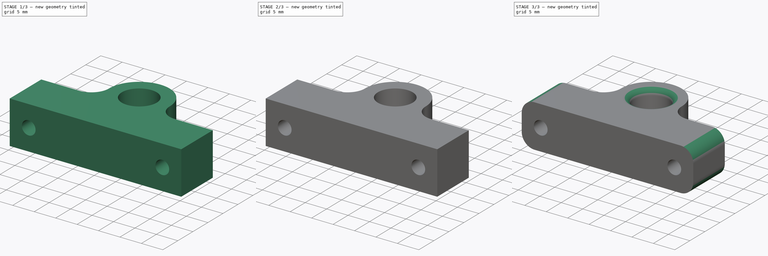
[diagram: build sequence overview — one tinted view per stage of 3, left to right]
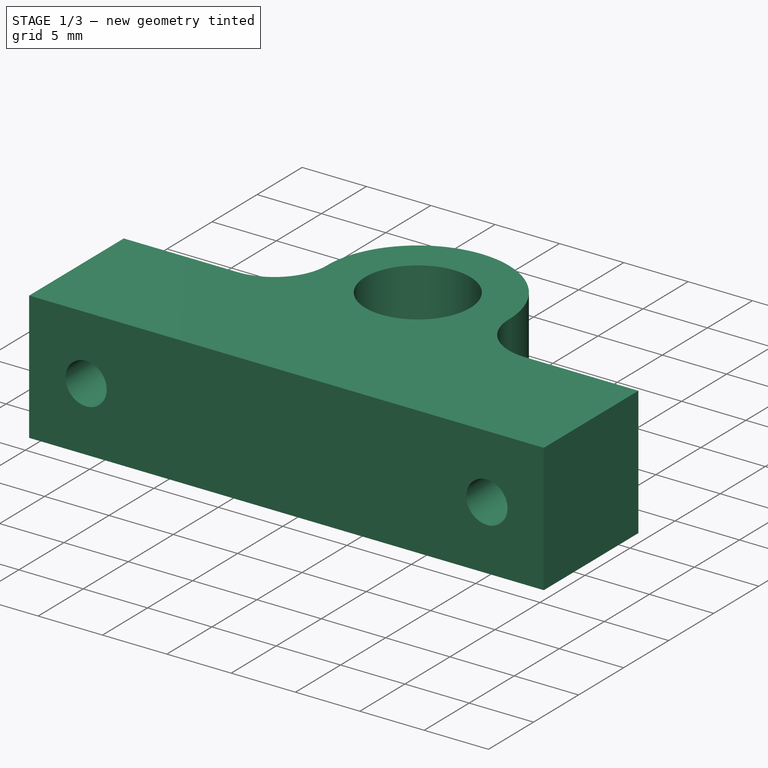
[diagram: stage 1 of 3 — iso view after this stage's code; geometry added in this stage tinted green]
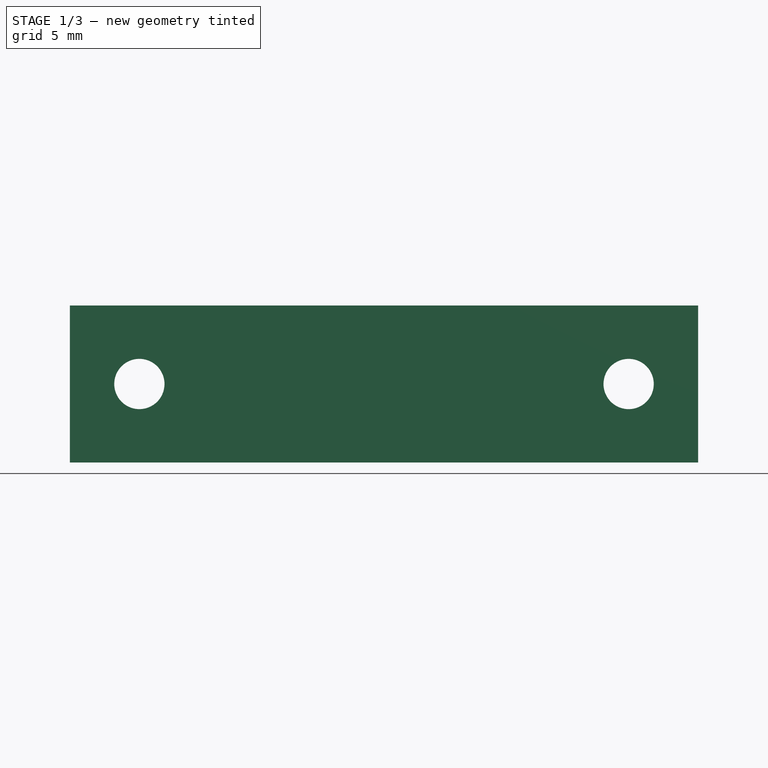
[diagram: stage 1 of 3 — front view after this stage's code; geometry added in this stage tinted green]
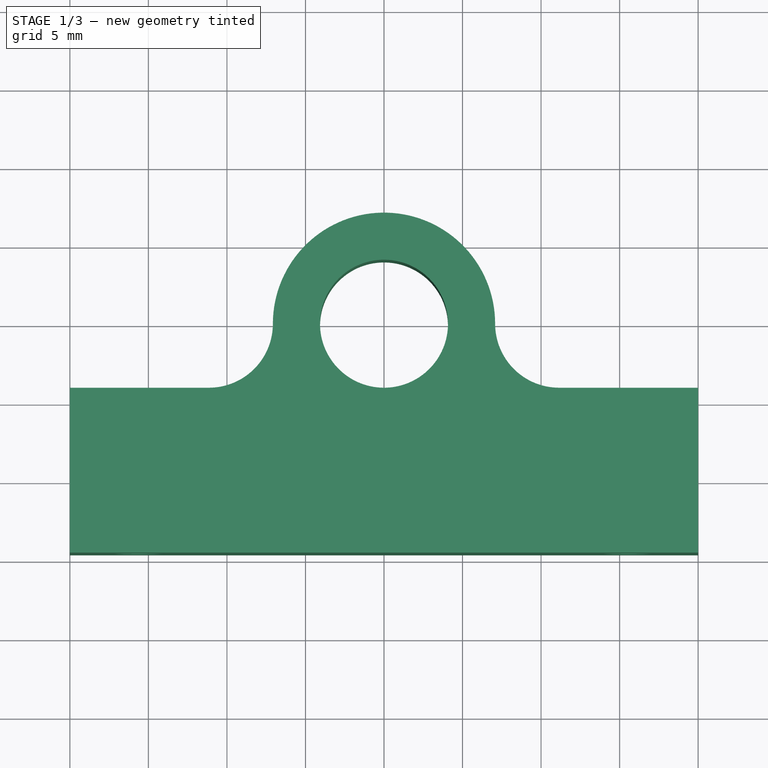
[diagram: stage 1 of 3 — top view after this stage's code; geometry added in this stage tinted green]
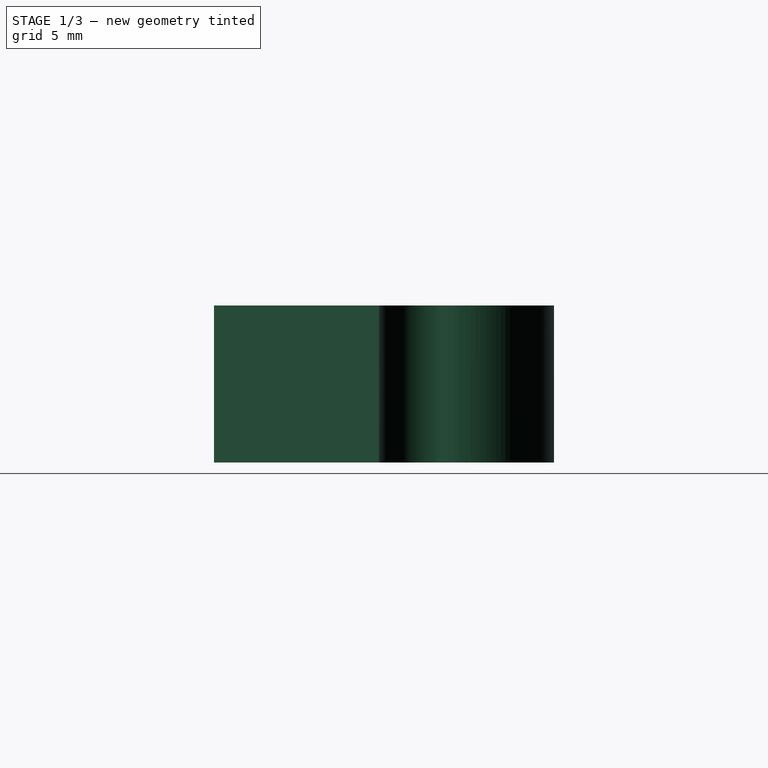
[diagram: stage 1 of 3 — right view after this stage's code; geometry added in this stage tinted green]
FCSTD DOCUMENT  (FreeCAD 0.20R29603 (Git))
Label: suporte-caixa-lateral-M8-P2
License: All rights reserved
LicenseURL: http://en.wikipedia.org/wiki/All_rights_reserved
objects: Sketcher::SketchObject×3, PartDesign::Pocket×2, PartDesign::Fillet×2, PartDesign::Pad×1, PartDesign::Body×1
note: 14 computed .brp shape members not serialized (recipe doc carries the construction recipe); baked Part::Feature solids carry a one-line shape summary decoded from their .brp

FEATURE [Sketcher::SketchObject] Sketch
  FullyConstrained = true
  MapMode = 5
  Support = -> [XY_Plane]
  sketch-geometry (15):
    g0: LineSegment StartX=-20 StartY=-4.075 StartZ=0 EndX=20 EndY=-4.075 EndZ=0
    g1: LineSegment StartX=20 StartY=-4.075 StartZ=0 EndX=20 EndY=-14.575 EndZ=0
    g2: LineSegment StartX=20 StartY=-14.575 StartZ=0 EndX=-20 EndY=-14.575 EndZ=0
    g3: LineSegment StartX=-20 StartY=-14.575 StartZ=0 EndX=-20 EndY=-4.075 EndZ=0
    g4: ArcOfCircle CenterX=0 CenterY=0 CenterZ=0 NormalX=0 NormalY=0 NormalZ=1 AngleXU=0 Radius=7.075 StartAngle=0 EndAngle=3.14159
    g5: LineSegment StartX=-7.075 StartY=0 StartZ=0 EndX=-7.075 EndY=-2.45553e-05 EndZ=0
    g6: LineSegment StartX=7.075 StartY=-2.45553e-05 StartZ=0 EndX=7.075 EndY=0 EndZ=0
    g7: Circle CenterX=0 CenterY=0 CenterZ=0 NormalX=0 NormalY=0 NormalZ=1 AngleXU=0 Radius=4.075
    g8: GeomPoint X=0 Y=-4.075 Z=0
    g9: GeomPoint X=0 Y=4.075 Z=0
    g10: GeomPoint X=0 Y=7.075 Z=0
    g11: LineSegment StartX=-20 StartY=-4.075 StartZ=0 EndX=-11.15 EndY=-4.075 EndZ=0
    g12: LineSegment StartX=20 StartY=-4.075 StartZ=0 EndX=11.15 EndY=-4.075 EndZ=0
    g13: ArcOfCircle CenterX=-11.15 CenterY=-2.45553e-05 CenterZ=0 NormalX=0 NormalY=0 NormalZ=1 AngleXU=0 Radius=4.07498 StartAngle=4.71239 EndAngle=6.28319
    g14: ArcOfCircle CenterX=11.15 CenterY=-2.45553e-05 CenterZ=0 NormalX=0 NormalY=0 NormalZ=1 AngleXU=0 Radius=4.07498 StartAngle=3.14159 EndAngle=4.71239
  constraints (36):
    c: Coincident(g0,g1)
    c: Coincident(g1,g2)
    c: Coincident(g2,g3)
    c: Coincident(g3,g0)
    c: Horizontal(g0)
    c: Horizontal(g2)
    c: Vertical(g1)
    c: Vertical(g3)
    c: Tangent(g4,g5) = -1.5708
    c: Tangent(g6,g4) = -1.5708
    c: Vertical(g5)
    c: Vertical(g6)
    c: Coincident(g7,g4)
    c: Diameter(g7) = 8.15
    c: PointOnObject(g8,g-2)
    c: PointOnObject(g8,g7)
    c: DistanceY(g1,g8) = 10.5
    c: Tangent(g0,g7)
    c: PointOnObject(g10,g4)
    c: PointOnObject(g10,g-2)
    c: PointOnObject(g9,g7)
    c: PointOnObject(g9,g-2)
    c: DistanceX(g2,g2) = 40
    c: DistanceY(g9,g10) = 3
    c: Coincident(g11,g3)
    c: Coincident(g12,g1)
    c: Equal(g11,g12)
    c: Tangent(g5,g13) = 1.5708
    c: Tangent(g11,g13) = -1.5708
    c: Tangent(g6,g14) = 1.5708
    c: Tangent(g12,g14) = 1.5708
    c: Equal(g13,g14)
    c: Horizontal(g11)
    c: Horizontal(g12)
    c: Coincident(g4,g-1)
    c: Tangent(g13,g4)
FEATURE [PartDesign::Pad] Pad
  Direction = (0,0,1)
  Length = 10
  Length2 = 10
  Profile = -> Sketch
  ReferenceAxis = -> Sketch [N_Axis]
  Type = 0
FEATURE [Sketcher::SketchObject] Sketch001
  ExternalGeometry = -> [Pad]
  FullyConstrained = true
  MapMode = 5
  Placement = pos=(0,-4.075,0) rot=(0,0.707107,0.707107;3.14159rad)
  Support = -> [Pad]
  sketch-geometry (6):
    g0: Circle CenterX=-15.575 CenterY=5 CenterZ=0 NormalX=0 NormalY=0 NormalZ=1 AngleXU=0 Radius=1.6
    g1: Circle CenterX=15.575 CenterY=5 CenterZ=0 NormalX=0 NormalY=0 NormalZ=1 AngleXU=0 Radius=1.6
    g2: LineSegment StartX=-20 StartY=10 StartZ=0 EndX=-11.15 EndY=0 EndZ=0
    g3: LineSegment StartX=-11.15 StartY=10 StartZ=0 EndX=-20 EndY=0 EndZ=0
    g4: LineSegment StartX=11.15 StartY=10 StartZ=0 EndX=20 EndY=0 EndZ=0
    g5: LineSegment StartX=20 StartY=10 StartZ=0 EndX=11.15 EndY=0 EndZ=0
  constraints (14):
    c: Coincident(g2,g-9)
    c: Coincident(g2,g-10)
    c: Coincident(g3,g-8)
    c: Coincident(g3,g-10)
    c: Coincident(g4,g-5)
    c: Coincident(g4,g-6)
    c: Coincident(g5,g-4)
    c: Coincident(g5,g-6)
    c: PointOnObject(g1,g5)
    c: PointOnObject(g1,g4)
    c: PointOnObject(g0,g2)
    c: PointOnObject(g0,g3)
    c: Equal(g0,g1)
    c: Diameter(g1) = 3.2
FEATURE [PartDesign::Pocket] Pocket
  BaseFeature = -> Pad
  Direction = (0,-1,2e-16)
  Length = 5
  Length2 = 5
  Profile = -> Sketch001
  ReferenceAxis = -> Sketch001 [N_Axis]
  Type = 1
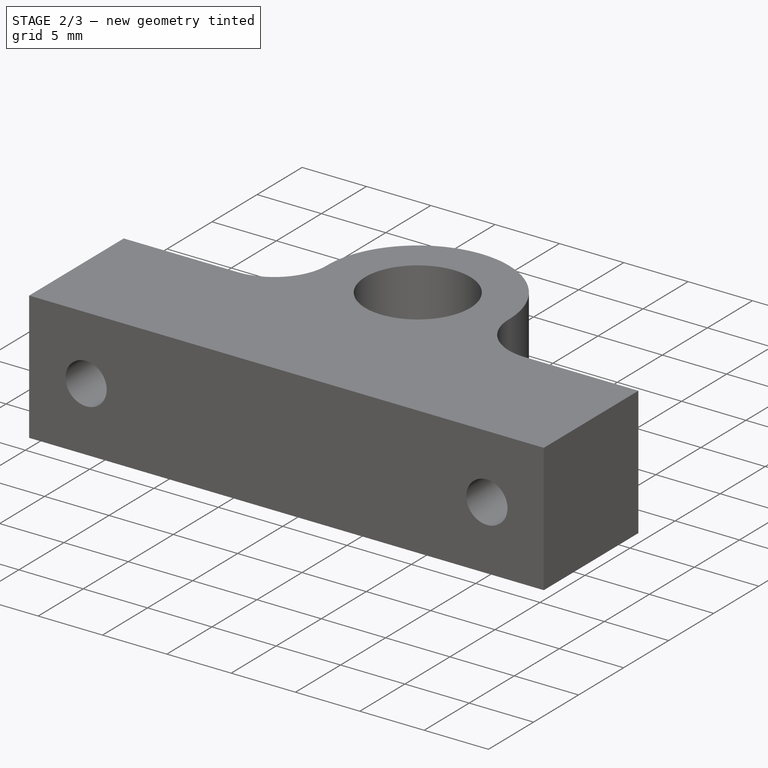
[diagram: stage 2 of 3 — iso view after this stage's code; geometry added in this stage tinted green]
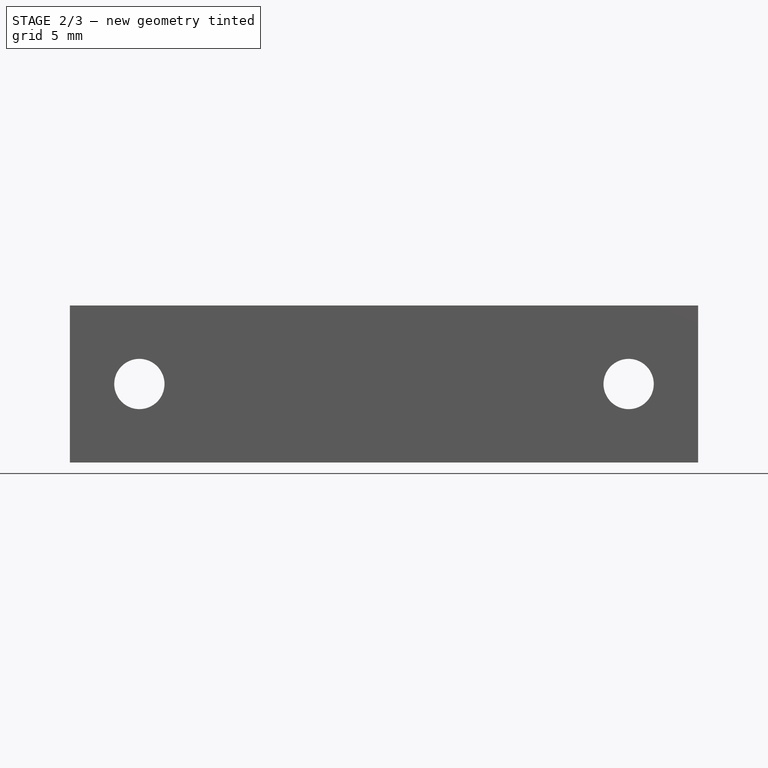
[diagram: stage 2 of 3 — front view after this stage's code; geometry added in this stage tinted green]
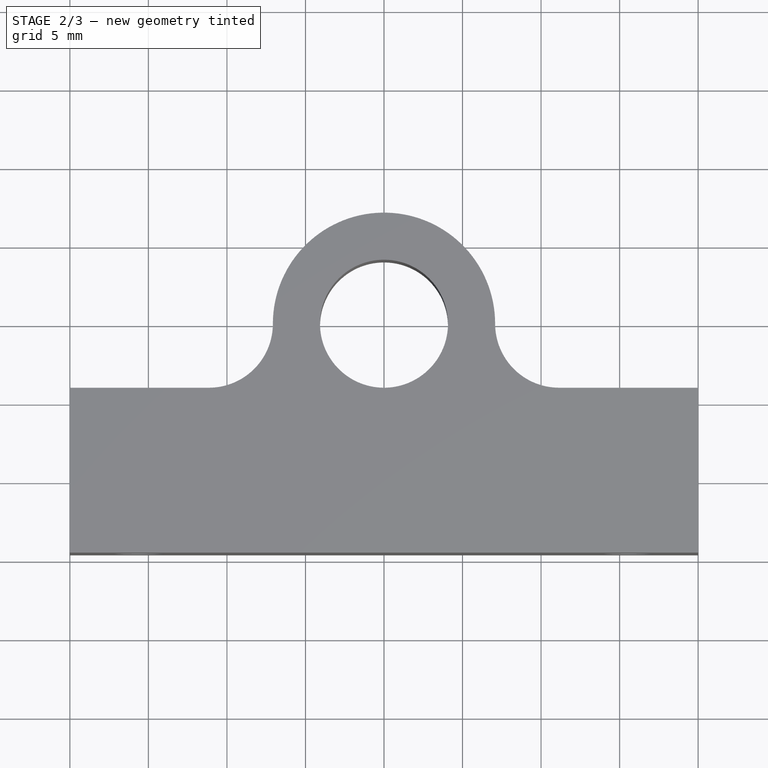
[diagram: stage 2 of 3 — top view after this stage's code; geometry added in this stage tinted green]
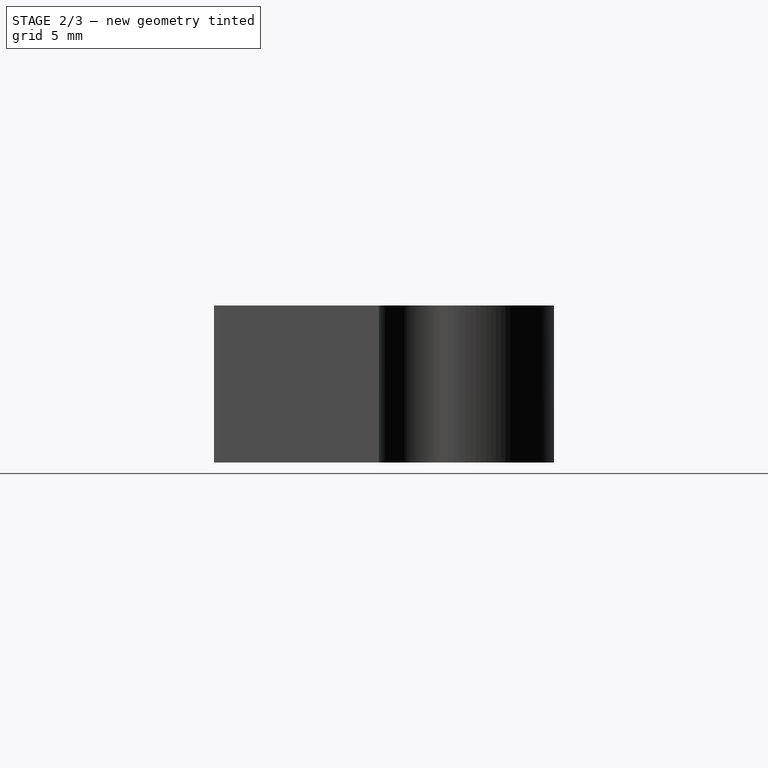
[diagram: stage 2 of 3 — right view after this stage's code; geometry added in this stage tinted green]
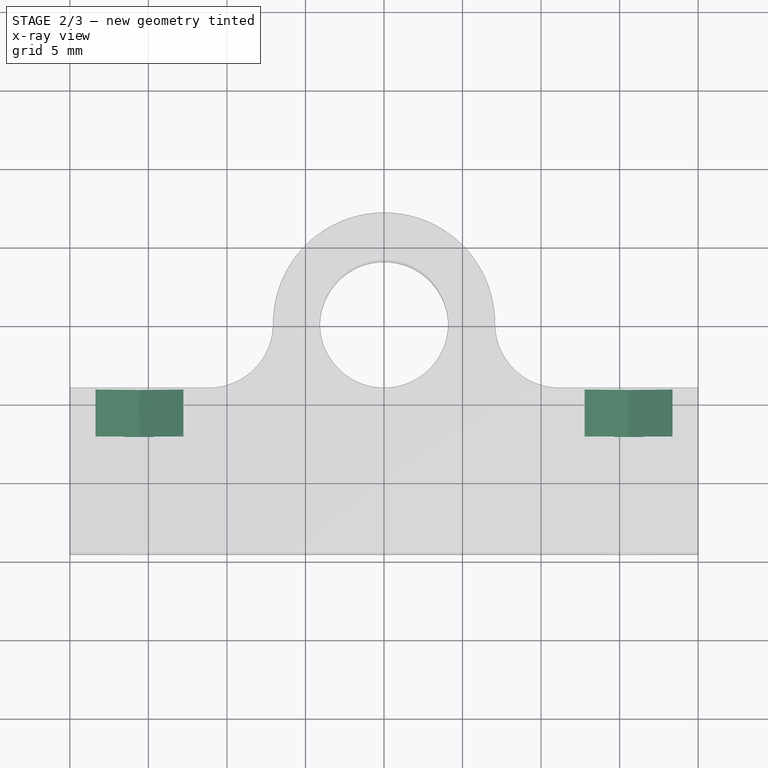
[diagram: stage 2 of 3 — x-ray composite at the top view; earlier geometry ghosted, this stage's added geometry solid]
FEATURE [Sketcher::SketchObject] Sketch002
  ExternalGeometry = -> [Pocket]
  FullyConstrained = true
  MapMode = 5
  Placement = pos=(0,-4.075,0) rot=(0,0.707107,0.707107;3.14159rad)
  Support = -> [Pocket]
  sketch-geometry (14):
    g0: LineSegment StartX=-15.575 StartY=8.23316 StartZ=0 EndX=-18.375 EndY=6.61658 EndZ=0
    g1: LineSegment StartX=-18.375 StartY=6.61658 StartZ=0 EndX=-18.375 EndY=3.38342 EndZ=0
    g2: LineSegment StartX=-18.375 StartY=3.38342 StartZ=0 EndX=-15.575 EndY=1.76684 EndZ=0
    g3: LineSegment StartX=-15.575 StartY=1.76684 StartZ=0 EndX=-12.775 EndY=3.38342 EndZ=0
    g4: LineSegment StartX=-12.775 StartY=3.38342 StartZ=0 EndX=-12.775 EndY=6.61658 EndZ=0
    g5: LineSegment StartX=-12.775 StartY=6.61658 StartZ=0 EndX=-15.575 EndY=8.23316 EndZ=0
    g6: Circle CenterX=-15.575 CenterY=5 CenterZ=0 NormalX=0 NormalY=0 NormalZ=1 AngleXU=0 Radius=3.23316
    g7: LineSegment StartX=15.575 StartY=8.23316 StartZ=0 EndX=12.775 EndY=6.61658 EndZ=0
    g8: LineSegment StartX=12.775 StartY=6.61658 StartZ=0 EndX=12.775 EndY=3.38342 EndZ=0
    g9: LineSegment StartX=12.775 StartY=3.38342 StartZ=0 EndX=15.575 EndY=1.76684 EndZ=0
    g10: LineSegment StartX=15.575 StartY=1.76684 StartZ=0 EndX=18.375 EndY=3.38342 EndZ=0
    g11: LineSegment StartX=18.375 StartY=3.38342 StartZ=0 EndX=18.375 EndY=6.61658 EndZ=0
    g12: LineSegment StartX=18.375 StartY=6.61658 StartZ=0 EndX=15.575 EndY=8.23316 EndZ=0
    g13: Circle CenterX=15.575 CenterY=5 CenterZ=0 NormalX=0 NormalY=0 NormalZ=1 AngleXU=0 Radius=3.23316
  constraints (32):
    c: Coincident(g0,g1)
    c: Coincident(g1,g2)
    c: Coincident(g2,g3)
    c: Coincident(g3,g4)
    c: Coincident(g4,g5)
    c: Coincident(g5,g0)
    c: Equal(g0, g1-g5) x5
    c: PointOnObject(g0,g6)
    c: PointOnObject(g1,g6)
    c: PointOnObject(g2,g6)
    c: PointOnObject(g3,g6)
    c: PointOnObject(g4,g6)
    c: PointOnObject(g5,g6)
    c: Coincident(g6,g-4)
    c: Coincident(g7,g8)
    c: Coincident(g8,g9)
    c: Coincident(g9,g10)
    c: Coincident(g10,g11)
    c: Coincident(g11,g12)
    c: Coincident(g12,g7)
    c: Equal(g7, g8-g12) x5
    c: PointOnObject(g7,g13)
    c: PointOnObject(g8,g13)
    c: PointOnObject(g9,g13)
    c: PointOnObject(g10,g13)
    c: PointOnObject(g11,g13)
    c: PointOnObject(g12,g13)
    c: Coincident(g13,g-3)
    c: Vertical(g8)
    c: Vertical(g4)
    c: Equal(g6,g13)
    c: DistanceX(g0,g4) = 5.6
FEATURE [PartDesign::Pocket] Pocket001
  BaseFeature = -> Pocket
  Direction = (0,-1,2e-16)
  Length = 3
  Length2 = 5
  Profile = -> Sketch002
  ReferenceAxis = -> Sketch002 [N_Axis]
  Type = 0
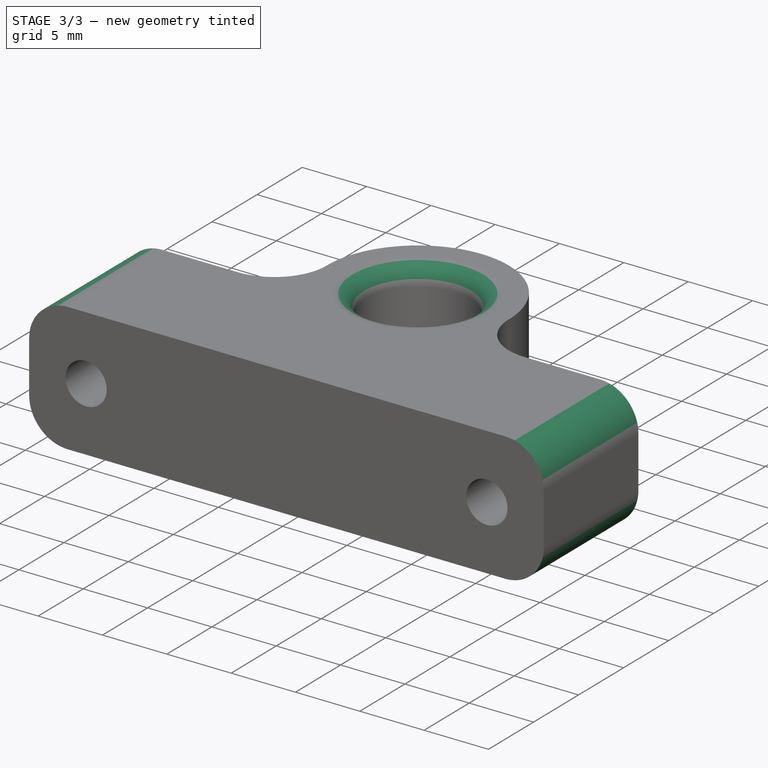
[diagram: stage 3 of 3 — iso view after this stage's code; geometry added in this stage tinted green]
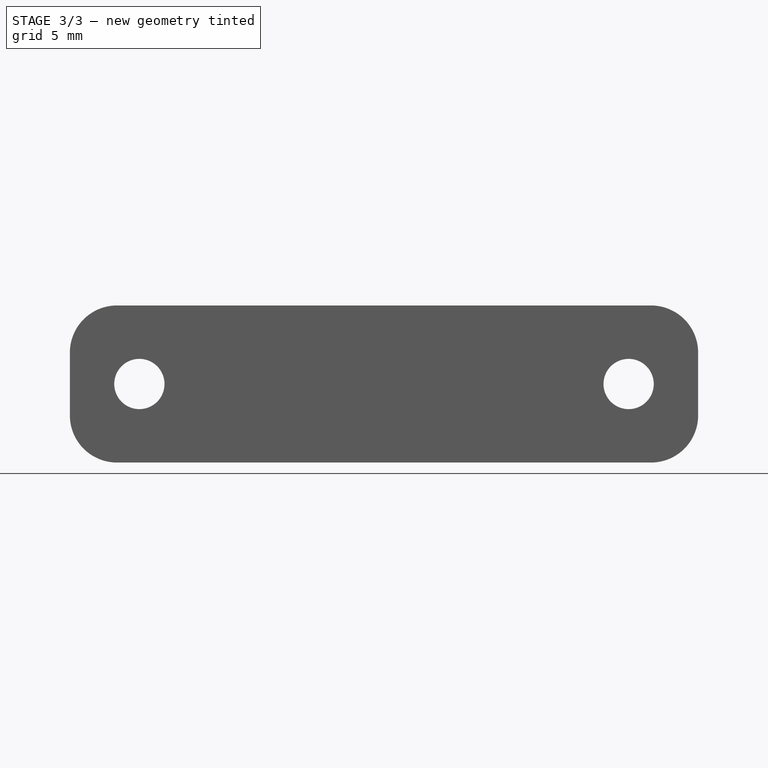
[diagram: stage 3 of 3 — front view after this stage's code; geometry added in this stage tinted green]
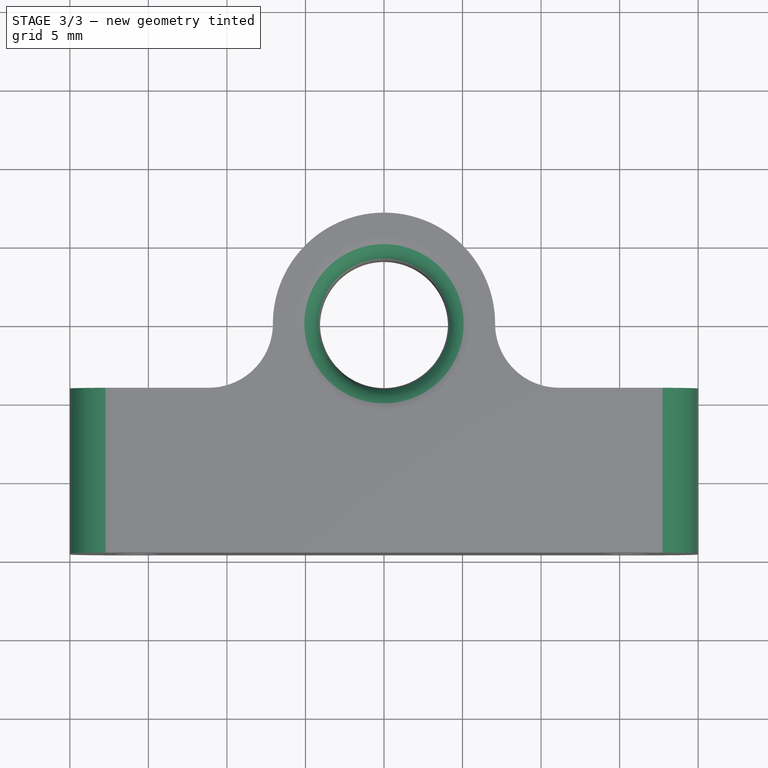
[diagram: stage 3 of 3 — top view after this stage's code; geometry added in this stage tinted green]
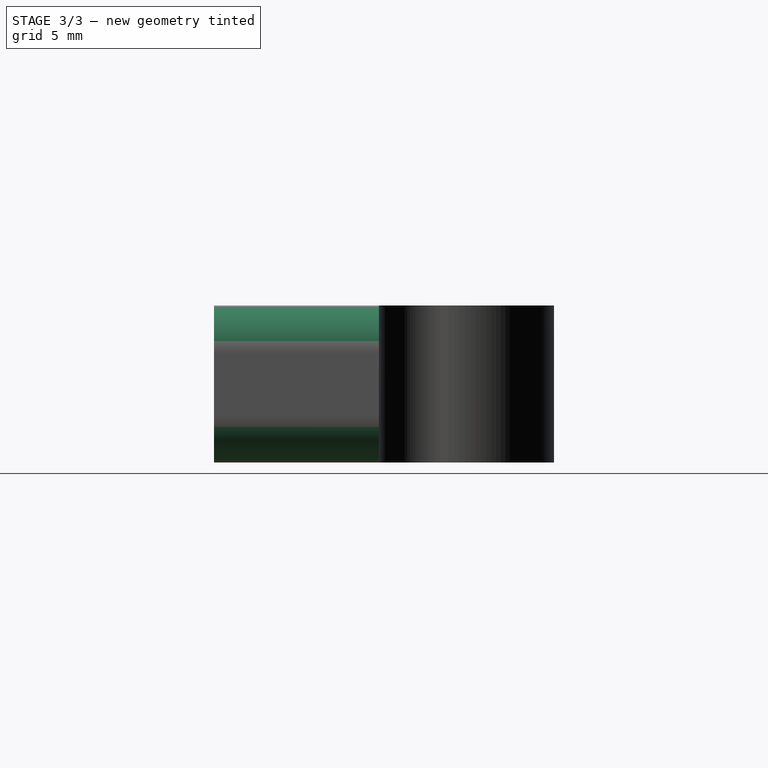
[diagram: stage 3 of 3 — right view after this stage's code; geometry added in this stage tinted green]
FEATURE [PartDesign::Fillet] Fillet
  Base = -> Pocket001 [Edge19,Edge27,Edge17,Edge25]
  BaseFeature = -> Pocket001
  Radius = 3
  SupportTransform = false
  UseAllEdges = false
FEATURE [PartDesign::Fillet] Fillet001
  Base = -> Fillet [Edge37,Edge28]
  BaseFeature = -> Fillet
  Radius = 1.5
  SupportTransform = false
  UseAllEdges = false
FEATURE [PartDesign::Body] Body
  Group = -> [Sketch,Pad,Sketch001,Pocket,Sketch002,Pocket001,Fillet,Fillet001]
  Origin = -> Origin
  Tip = -> Fillet001
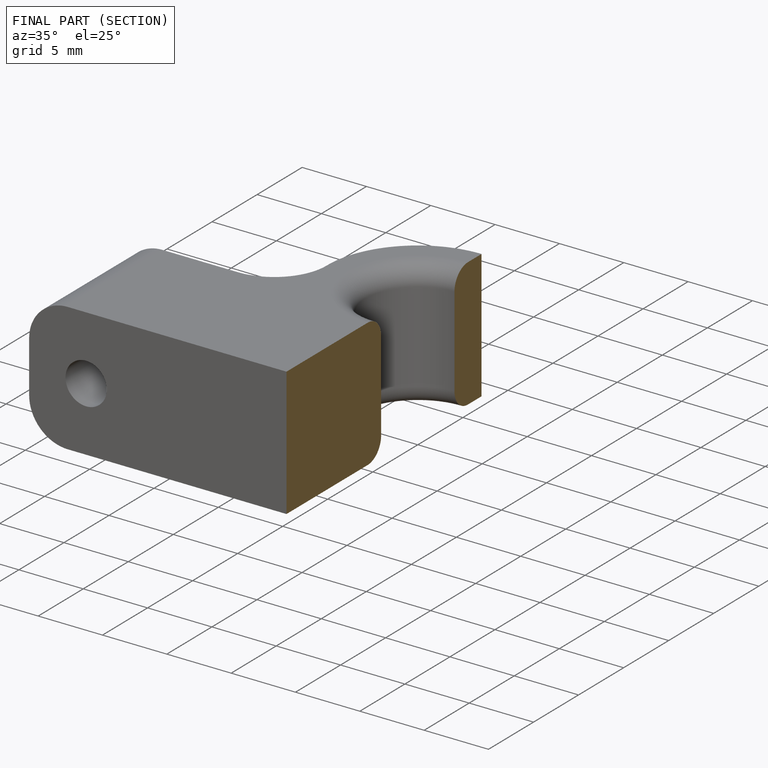
[diagram: finished part — half-section view (interior)]
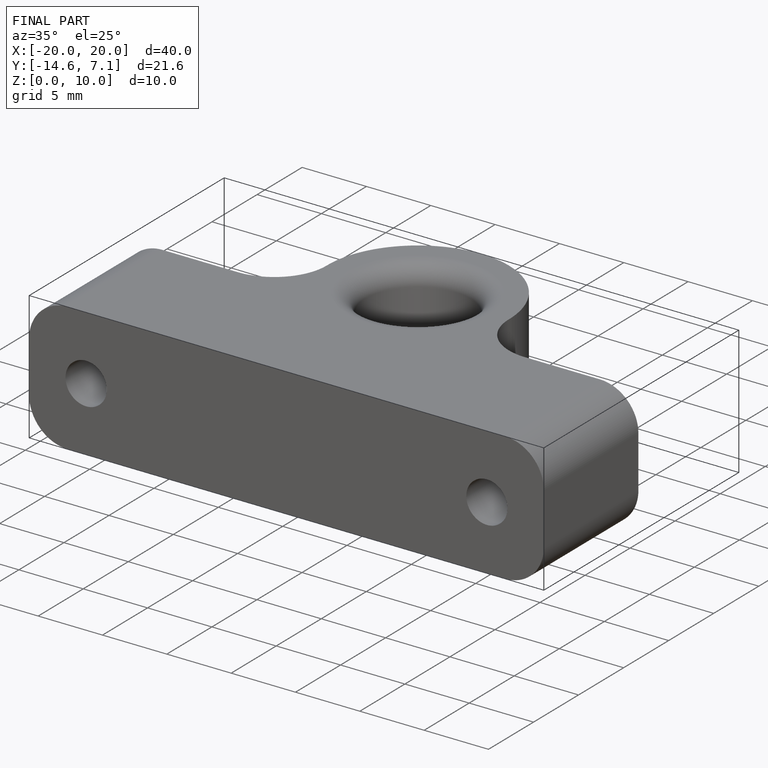
[diagram: finished part — iso view with bounding-box wireframe]
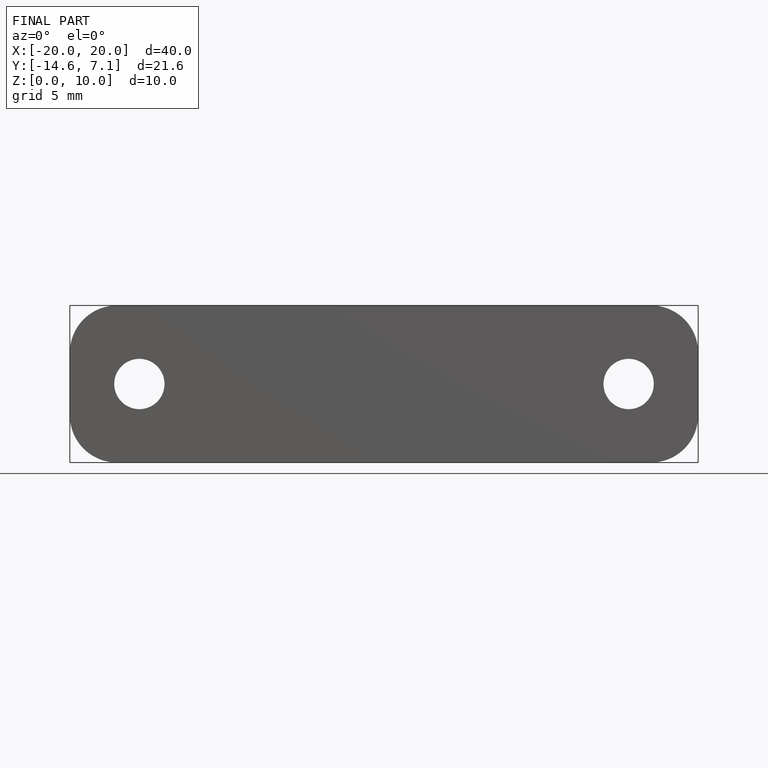
[diagram: finished part — front view with bounding-box wireframe]
